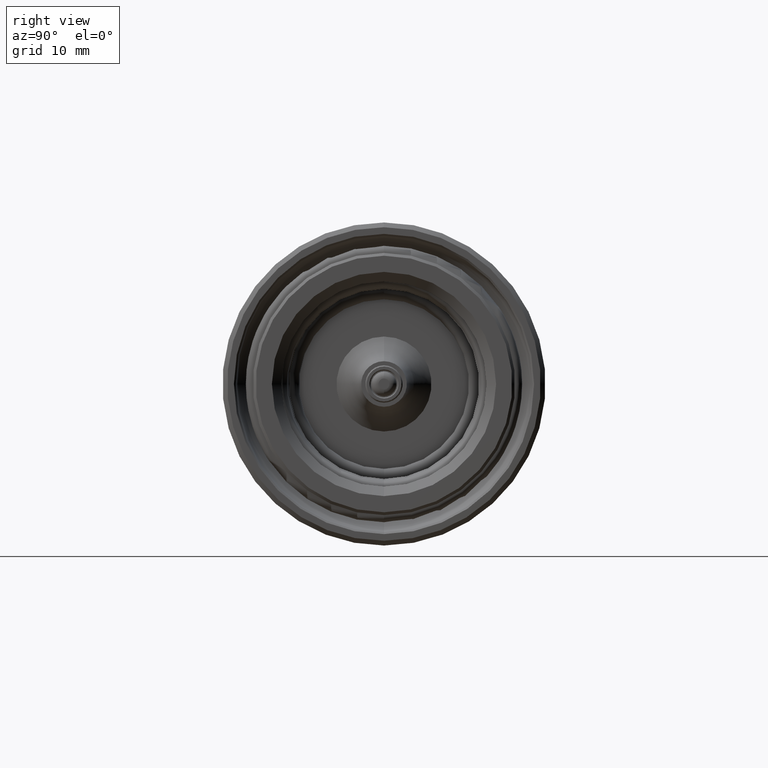
[diagram: clean part render]
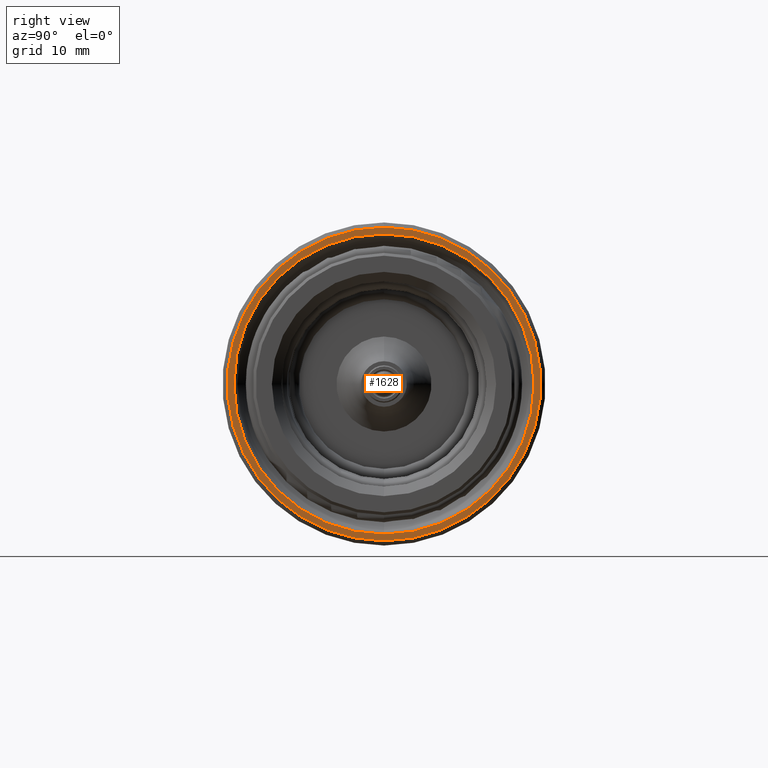
[diagram: same view with one face highlighted and labeled with its STEP entity id]
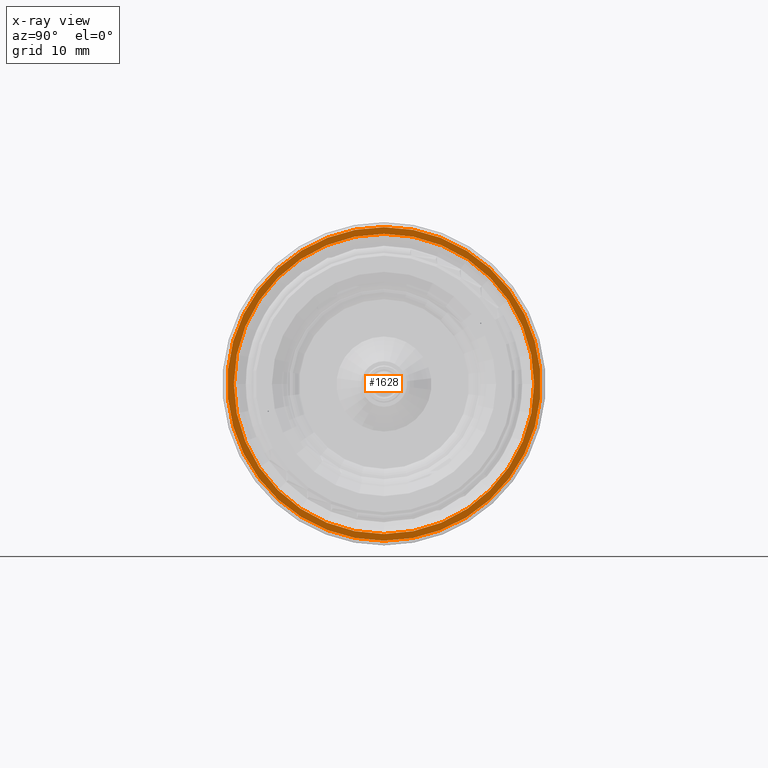
[diagram: x-ray of the same camera — body ghosted, the highlighted face saturated]
A machine part, right view. The second image highlights one B-rep face of the part: STEP entity #1628.
The next image is the same camera in x-ray: the body ghosted, the highlighted face saturated — about 0% of this face is hidden behind the body in this view.
In plain terms, the highlighted planar face has unit normal (-1, 0, 0).
Its self-contained STEP definition (entity closure, byte-faithful):
#72 = AXIS2_PLACEMENT_3D ( 'NONE', #3476, #3478, #3475 ) ;
#184 = AXIS2_PLACEMENT_3D ( 'NONE', #4098, #4097, #4096 ) ;
#222 = AXIS2_PLACEMENT_3D ( 'NONE', #3830, #3828, #3826 ) ;
#488 = AXIS2_PLACEMENT_3D ( 'NONE', #2159, #2157, #2156 ) ;
#492 = AXIS2_PLACEMENT_3D ( 'NONE', #2124, #2123, #2122 ) ;
#669 = EDGE_LOOP ( 'NONE', ( #947, #946 ) ) ;
#673 = EDGE_LOOP ( 'NONE', ( #949, #948 ) ) ;
#946 = ORIENTED_EDGE ( 'NONE', *, *, #1728, .T. ) ;
#947 = ORIENTED_EDGE ( 'NONE', *, *, #4190, .T. ) ;
#948 = ORIENTED_EDGE ( 'NONE', *, *, #1690, .F. ) ;
#949 = ORIENTED_EDGE ( 'NONE', *, *, #4180, .F. ) ;
#1429 = CIRCLE ( 'NONE', #222, 15.79999999999470000 ) ;
#1628 = ADVANCED_FACE ( 'NONE', ( #4458, #4457 ), #3479, .F. ) ;
#1690 = EDGE_CURVE ( 'NONE', #3215, #3348, #4744, .T. ) ;
#1728 = EDGE_CURVE ( 'NONE', #3251, #3377, #1429, .T. ) ;
#2122 = DIRECTION ( 'NONE',  ( 0.0000000000000000000, 0.0000000000000000000, 1.000000000000000000 ) ) ;
#2123 = DIRECTION ( 'NONE',  ( -1.000000000000000000, 0.0000000000000000000, 0.0000000000000000000 ) ) ;
#2124 = CARTESIAN_POINT ( 'NONE',  ( 60.19999999999279800, 0.0000000000000000000, 0.0000000000000000000 ) ) ;
#2156 = DIRECTION ( 'NONE',  ( 0.0000000000000000000, 0.0000000000000000000, 1.000000000000000000 ) ) ;
#2157 = DIRECTION ( 'NONE',  ( -1.000000000000000000, 0.0000000000000000000, 0.0000000000000000000 ) ) ;
#2159 = CARTESIAN_POINT ( 'NONE',  ( 60.19999999999279800, 0.0000000000000000000, 0.0000000000000000000 ) ) ;
#2173 = CARTESIAN_POINT ( 'NONE',  ( 60.19999999999279800, 0.0000000000000000000, -15.79999999999473200 ) ) ;
#2283 = CARTESIAN_POINT ( 'NONE',  ( 60.19999999999279800, 0.0000000000000000000, 16.49999999999575100 ) ) ;
#2628 = CARTESIAN_POINT ( 'NONE',  ( 60.19999999999279800, 1.934941942652173100E-015, 15.79999999999473200 ) ) ;
#2655 = CARTESIAN_POINT ( 'NONE',  ( 60.19999999999279800, 2.051283388571299400E-015, -16.49999999999575100 ) ) ;
#3215 = VERTEX_POINT ( 'NONE', #2655 ) ;
#3251 = VERTEX_POINT ( 'NONE', #2628 ) ;
#3348 = VERTEX_POINT ( 'NONE', #2283 ) ;
#3377 = VERTEX_POINT ( 'NONE', #2173 ) ;
#3475 = DIRECTION ( 'NONE',  ( 0.0000000000000000000, 0.0000000000000000000, 1.000000000000000000 ) ) ;
#3476 = CARTESIAN_POINT ( 'NONE',  ( 60.19999999999279800, -40.29724526252420000, 0.0000000000000000000 ) ) ;
#3478 = DIRECTION ( 'NONE',  ( -1.000000000000000000, 0.0000000000000000000, 0.0000000000000000000 ) ) ;
#3479 = PLANE ( 'NONE',  #72 ) ;
#3637 = CIRCLE ( 'NONE', #492, 15.79999999999470000 ) ;
#3695 = CIRCLE ( 'NONE', #488, 16.49999999999575100 ) ;
#3826 = DIRECTION ( 'NONE',  ( 0.0000000000000000000, 0.0000000000000000000, 1.000000000000000000 ) ) ;
#3828 = DIRECTION ( 'NONE',  ( -1.000000000000000000, 0.0000000000000000000, 0.0000000000000000000 ) ) ;
#3830 = CARTESIAN_POINT ( 'NONE',  ( 60.19999999999279800, 0.0000000000000000000, 0.0000000000000000000 ) ) ;
#4096 = DIRECTION ( 'NONE',  ( 0.0000000000000000000, 0.0000000000000000000, 1.000000000000000000 ) ) ;
#4097 = DIRECTION ( 'NONE',  ( -1.000000000000000000, 0.0000000000000000000, 0.0000000000000000000 ) ) ;
#4098 = CARTESIAN_POINT ( 'NONE',  ( 60.19999999999279800, 0.0000000000000000000, 0.0000000000000000000 ) ) ;
#4180 = EDGE_CURVE ( 'NONE', #3348, #3215, #3695, .T. ) ;
#4190 = EDGE_CURVE ( 'NONE', #3377, #3251, #3637, .T. ) ;
#4457 = FACE_BOUND ( 'NONE', #669, .T. ) ;
#4458 = FACE_OUTER_BOUND ( 'NONE', #673, .T. ) ;
#4744 = CIRCLE ( 'NONE', #184, 16.49999999999575100 ) ;